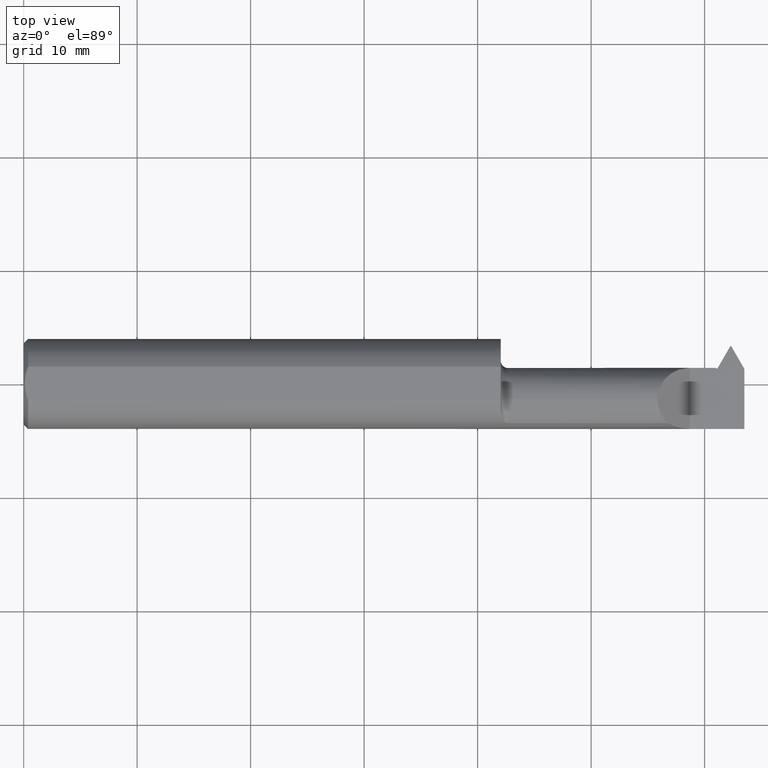
[diagram: clean part render]
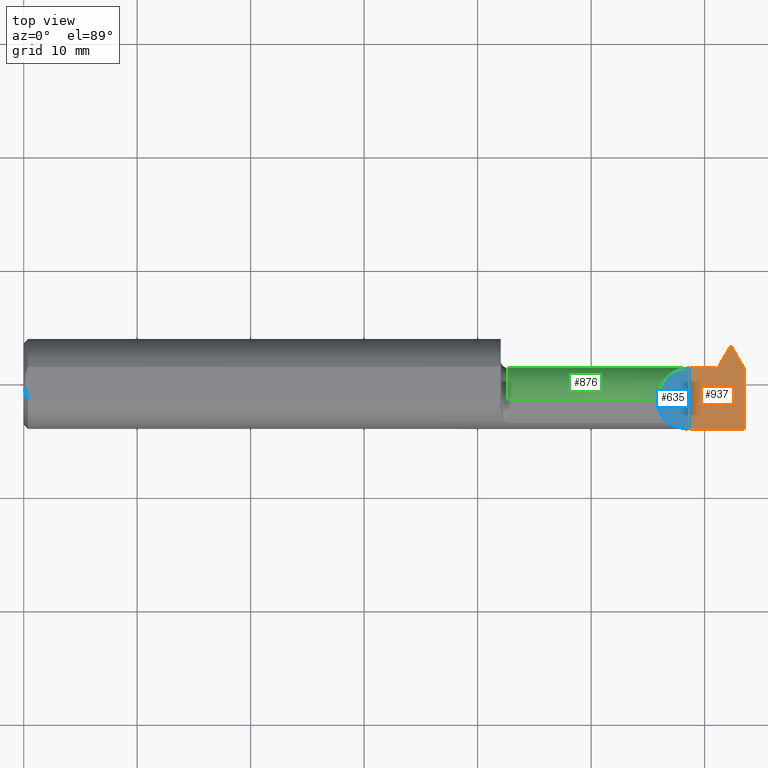
[diagram: same view with three faces highlighted in distinct colors, each labeled with its STEP entity id]
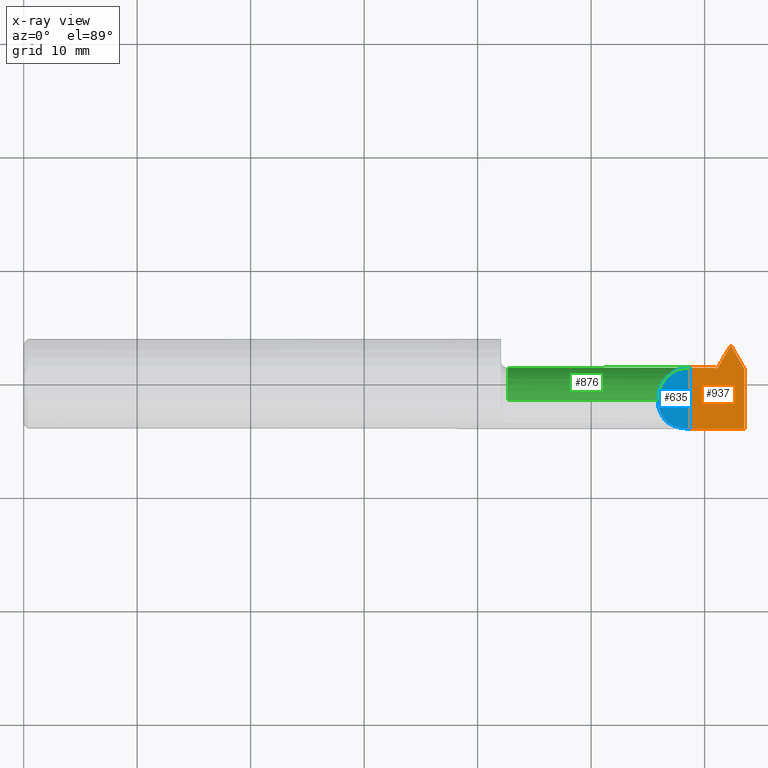
[diagram: x-ray of the same camera — body ghosted, the three highlighted faces saturated]
A machine part, top view with three faces highlighted in distinct colors.
The next image is the same camera in x-ray (body ghosted, the three faces saturated) — at least one of them is partly hidden behind the body in this view.
Their STEP definitions:

[orange] entity #937 — the highlighted planar face has unit normal (-0, 0, -1).
#1 = CARTESIAN_POINT ( 'NONE',  ( 2.310000000000000053, -0.1560999999999999888, -3.979970649922725226E-17 ) ) ;
#3 = VECTOR ( 'NONE', #726, 39.37007874015748143 ) ;
#54 = ORIENTED_EDGE ( 'NONE', *, *, #958, .F. ) ;
#68 = EDGE_CURVE ( 'NONE', #113, #148, #905, .T. ) ;
#76 = CARTESIAN_POINT ( 'NONE',  ( 2.406716679003209070, 0.05389999999999999653, 0.000000000000000000 ) ) ;
#80 = VECTOR ( 'NONE', #745, 39.37007874015748854 ) ;
#86 = LINE ( 'NONE', #670, #80 ) ;
#92 = DIRECTION ( 'NONE',  ( 1.000000000000000000, -0.000000000000000000, -0.000000000000000000 ) ) ;
#111 = CARTESIAN_POINT ( 'NONE',  ( 2.310000000000000053, 0.05590000000000001218, -3.979970649922725226E-17 ) ) ;
#113 = VERTEX_POINT ( 'NONE', #370 ) ;
#147 = CARTESIAN_POINT ( 'NONE',  ( 2.500000000000000000, 0.05265867555372412412, 0.000000000000000000 ) ) ;
#148 = VERTEX_POINT ( 'NONE', #147 ) ;
#151 = VECTOR ( 'NONE', #411, 39.37007874015748143 ) ;
#159 = DIRECTION ( 'NONE',  ( -0.000000000000000000, 0.000000000000000000, -1.000000000000000000 ) ) ;
#180 = CARTESIAN_POINT ( 'NONE',  ( 2.451750000000000096, 0.1318999999999999617, -3.979970649922725226E-17 ) ) ;
#221 = DIRECTION ( 'NONE',  ( -1.000000000000000000, -7.250278991207125343E-15, 0.000000000000000000 ) ) ;
#286 = LINE ( 'NONE', #882, #794 ) ;
#300 = DIRECTION ( 'NONE',  ( -0.000000000000000000, 1.000000000000000000, -0.000000000000000000 ) ) ;
#307 = FACE_OUTER_BOUND ( 'NONE', #388, .T. ) ;
#310 = VECTOR ( 'NONE', #221, 39.37007874015748143 ) ;
#345 = LINE ( 'NONE', #583, #3 ) ;
#354 = CARTESIAN_POINT ( 'NONE',  ( 1.655000000000000249, 0.05590000000000001218, -3.979970649922725226E-17 ) ) ;
#359 = DIRECTION ( 'NONE',  ( 1.000000000000000000, 0.000000000000000000, 0.000000000000000000 ) ) ;
#368 = CARTESIAN_POINT ( 'NONE',  ( 2.310000000000000053, 0.1749999999999999889, -3.979970649922725226E-17 ) ) ;
#370 = CARTESIAN_POINT ( 'NONE',  ( 2.500000000000000000, -0.1560999999999999333, -3.979970649922725226E-17 ) ) ;
#388 = EDGE_LOOP ( 'NONE', ( #541, #54, #477, #714, #567, #446, #509, #897, #926 ) ) ;
#411 = DIRECTION ( 'NONE',  ( 2.731847993664263613E-15, -1.000000000000000000, -0.000000000000000000 ) ) ;
#425 = LINE ( 'NONE', #815, #310 ) ;
#446 = ORIENTED_EDGE ( 'NONE', *, *, #642, .F. ) ;
#461 = EDGE_CURVE ( 'NONE', #813, #624, #286, .T. ) ;
#476 = CARTESIAN_POINT ( 'NONE',  ( 2.500000000000000000, 0.1749999999999999889, -3.979970649922725226E-17 ) ) ;
#477 = ORIENTED_EDGE ( 'NONE', *, *, #888, .T. ) ;
#498 = DIRECTION ( 'NONE',  ( 0.5000000000000026645, 0.8660254037844370423, 0.000000000000000000 ) ) ;
#500 = LINE ( 'NONE', #354, #781 ) ;
#507 = CARTESIAN_POINT ( 'NONE',  ( 2.400999999999999801, 0.05389999999999999653, 0.000000000000000000 ) ) ;
#509 = ORIENTED_EDGE ( 'NONE', *, *, #864, .F. ) ;
#514 = VERTEX_POINT ( 'NONE', #1 ) ;
#537 = EDGE_CURVE ( 'NONE', #880, #813, #833, .T. ) ;
#541 = ORIENTED_EDGE ( 'NONE', *, *, #68, .T. ) ;
#554 = LINE ( 'NONE', #850, #151 ) ;
#560 = VERTEX_POINT ( 'NONE', #812 ) ;
#567 = ORIENTED_EDGE ( 'NONE', *, *, #537, .F. ) ;
#575 = VERTEX_POINT ( 'NONE', #821 ) ;
#583 = CARTESIAN_POINT ( 'NONE',  ( 2.500000000000000000, -0.1560999999999999888, -3.979970649922725226E-17 ) ) ;
#616 = VERTEX_POINT ( 'NONE', #111 ) ;
#624 = VERTEX_POINT ( 'NONE', #180 ) ;
#642 = EDGE_CURVE ( 'NONE', #560, #880, #554, .T. ) ;
#655 = DIRECTION ( 'NONE',  ( -0.000000000000000000, 1.000000000000000000, -0.000000000000000000 ) ) ;
#665 = DIRECTION ( 'NONE',  ( -1.000000000000000000, 0.000000000000000000, 0.000000000000000000 ) ) ;
#670 = CARTESIAN_POINT ( 'NONE',  ( 2.452999999999999847, 0.1340650635094609855, 0.000000000000000000 ) ) ;
#673 = VECTOR ( 'NONE', #300, 39.37007874015748143 ) ;
#679 = PLANE ( 'NONE',  #827 ) ;
#714 = ORIENTED_EDGE ( 'NONE', *, *, #461, .F. ) ;
#726 = DIRECTION ( 'NONE',  ( -1.000000000000000000, -0.000000000000000000, -0.000000000000000000 ) ) ;
#736 = CARTESIAN_POINT ( 'NONE',  ( 2.310000000000000053, 0.1749999999999999889, -3.979970649922725226E-17 ) ) ;
#745 = DIRECTION ( 'NONE',  ( 0.5000000000000022204, -0.8660254037844373753, 0.000000000000000000 ) ) ;
#752 = EDGE_CURVE ( 'NONE', #514, #616, #877, .T. ) ;
#781 = VECTOR ( 'NONE', #359, 39.37007874015748143 ) ;
#790 = EDGE_CURVE ( 'NONE', #113, #514, #345, .T. ) ;
#794 = VECTOR ( 'NONE', #498, 39.37007874015748854 ) ;
#806 = CARTESIAN_POINT ( 'NONE',  ( 2.406716679003209070, 0.05389999999999999653, 0.000000000000000000 ) ) ;
#811 = VECTOR ( 'NONE', #92, 39.37007874015748143 ) ;
#812 = CARTESIAN_POINT ( 'NONE',  ( 2.400999999999999801, 0.05590000000000001218, 0.000000000000000000 ) ) ;
#813 = VERTEX_POINT ( 'NONE', #806 ) ;
#815 = CARTESIAN_POINT ( 'NONE',  ( 2.310000000000000497, 0.1318999999999989348, -3.979970649922725226E-17 ) ) ;
#821 = CARTESIAN_POINT ( 'NONE',  ( 2.454250000000000043, 0.1318999999999999895, 0.000000000000000000 ) ) ;
#827 = AXIS2_PLACEMENT_3D ( 'NONE', #368, #159, #665 ) ;
#833 = LINE ( 'NONE', #76, #811 ) ;
#842 = VECTOR ( 'NONE', #655, 39.37007874015748143 ) ;
#850 = CARTESIAN_POINT ( 'NONE',  ( 2.400999999999999801, 0.05389999999999999653, 0.000000000000000000 ) ) ;
#864 = EDGE_CURVE ( 'NONE', #616, #560, #500, .T. ) ;
#877 = LINE ( 'NONE', #736, #842 ) ;
#880 = VERTEX_POINT ( 'NONE', #507 ) ;
#882 = CARTESIAN_POINT ( 'NONE',  ( 2.406716679003209070, 0.05389999999999999653, 0.000000000000000000 ) ) ;
#888 = EDGE_CURVE ( 'NONE', #575, #624, #425, .T. ) ;
#897 = ORIENTED_EDGE ( 'NONE', *, *, #752, .F. ) ;
#905 = LINE ( 'NONE', #476, #673 ) ;
#926 = ORIENTED_EDGE ( 'NONE', *, *, #790, .F. ) ;
#937 = ADVANCED_FACE ( 'NONE', ( #307 ), #679, .F. ) ;
#958 = EDGE_CURVE ( 'NONE', #575, #148, #86, .T. ) ;

[blue] entity #635 — the highlighted planar face has unit normal (-0.7071, 0, -0.7071).
#13 = CARTESIAN_POINT ( 'NONE',  ( 2.199100000000000499, -0.05509999999999999620, 0.1110000000000000014 ) ) ;
#41 = CARTESIAN_POINT ( 'NONE',  ( 2.199100000000000943, 0.009875857480521079562, 0.1110000000000000014 ) ) ;
#95 = AXIS2_PLACEMENT_3D ( 'NONE', #628, #558, #253 ) ;
#136 = CARTESIAN_POINT ( 'NONE',  ( 2.310000000000000053, -0.1560999679692471886, 9.999999999973052634E-05 ) ) ;
#166 = EDGE_CURVE ( 'NONE', #296, #950, #449, .T. ) ;
#177 = EDGE_CURVE ( 'NONE', #394, #296, #222, .T. ) ;
#196 = CARTESIAN_POINT ( 'NONE',  ( 2.258128869355540136, -0.1495342103855425986, 0.05197113064445998271 ) ) ;
#222 =( BOUNDED_CURVE ( )  B_SPLINE_CURVE ( 3, ( #311, #615, #41, #485 ),
 .UNSPECIFIED., .F., .F. ) 
 B_SPLINE_CURVE_WITH_KNOTS ( ( 4, 4 ),
 ( 4.713289881407453308, 6.283185307179586232 ),
 .UNSPECIFIED. ) 
 CURVE ( )  GEOMETRIC_REPRESENTATION_ITEM ( )  RATIONAL_B_SPLINE_CURVE ( ( 1.000000000000000000, 0.8049501506993195221, 0.8049501506993195221, 1.000000000000000000 ) ) 
 REPRESENTATION_ITEM ( '' )  );
#249 = CARTESIAN_POINT ( 'NONE',  ( 2.199100000000000499, -0.05509999999999999620, 0.1110000000000000014 ) ) ;
#253 = DIRECTION ( 'NONE',  ( -0.7071067811865461294, 0.000000000000000000, 0.7071067811865487940 ) ) ;
#282 = CARTESIAN_POINT ( 'NONE',  ( 2.310000000000000053, -0.1560999679692471886, 9.999999999973052634E-05 ) ) ;
#296 = VERTEX_POINT ( 'NONE', #249 ) ;
#305 = CARTESIAN_POINT ( 'NONE',  ( 2.199100000000000499, -0.08664595039291324297, 0.1110000000000000431 ) ) ;
#311 = CARTESIAN_POINT ( 'NONE',  ( 2.310000000000000053, 0.05589995495494588795, 9.999999999973052634E-05 ) ) ;
#318 = ORIENTED_EDGE ( 'NONE', *, *, #177, .T. ) ;
#321 =( BOUNDED_CURVE ( )  B_SPLINE_CURVE ( 3, ( #282, #737, #196, #869 ),
 .UNSPECIFIED., .F., .T. ) 
 B_SPLINE_CURVE_WITH_KNOTS ( ( 4, 4 ),
 ( 4.713029595418895212, 5.214101826882463264 ),
 .UNSPECIFIED. ) 
 CURVE ( )  GEOMETRIC_REPRESENTATION_ITEM ( )  RATIONAL_B_SPLINE_CURVE ( ( 1.000000000000000000, 0.9791864302132653464, 0.9791864302132653464, 1.000000000000000000 ) ) 
 REPRESENTATION_ITEM ( '' )  );
#342 = ORIENTED_EDGE ( 'NONE', *, *, #166, .T. ) ;
#364 = CARTESIAN_POINT ( 'NONE',  ( 2.310000000000000053, 0.1749999999999999889, 9.999999999973052634E-05 ) ) ;
#380 = EDGE_CURVE ( 'NONE', #835, #950, #321, .T. ) ;
#384 = LINE ( 'NONE', #364, #901 ) ;
#394 = VERTEX_POINT ( 'NONE', #501 ) ;
#428 = ORIENTED_EDGE ( 'NONE', *, *, #380, .F. ) ;
#449 =( BOUNDED_CURVE ( )  B_SPLINE_CURVE ( 3, ( #13, #305, #607, #899 ),
 .UNSPECIFIED., .F., .T. ) 
 B_SPLINE_CURVE_WITH_KNOTS ( ( 4, 4 ),
 ( 0.000000000000000000, 0.8280247010054025969 ),
 .UNSPECIFIED. ) 
 CURVE ( )  GEOMETRIC_REPRESENTATION_ITEM ( )  RATIONAL_B_SPLINE_CURVE ( ( 1.000000000000000000, 0.9436760562907885452, 0.9436760562907885452, 1.000000000000000000 ) ) 
 REPRESENTATION_ITEM ( '' )  );
#485 = CARTESIAN_POINT ( 'NONE',  ( 2.199100000000000499, -0.05509999999999999620, 0.1110000000000000014 ) ) ;
#501 = CARTESIAN_POINT ( 'NONE',  ( 2.310000000000000053, 0.05589995495494588795, 9.999999999973052634E-05 ) ) ;
#505 = ORIENTED_EDGE ( 'NONE', *, *, #889, .F. ) ;
#558 = DIRECTION ( 'NONE',  ( -0.7071067811865489050, 0.000000000000000000, -0.7071067811865462405 ) ) ;
#607 = CARTESIAN_POINT ( 'NONE',  ( 2.211790491667020575, -0.1155267122845504424, 0.09830950833298025826 ) ) ;
#615 = CARTESIAN_POINT ( 'NONE',  ( 2.245024168887416405, 0.05584141814640498219, 0.06507583111258367914 ) ) ;
#628 = CARTESIAN_POINT ( 'NONE',  ( 2.165000000000000480, 0.1749999999999999889, 0.1450999999999999512 ) ) ;
#635 = ADVANCED_FACE ( 'NONE', ( #639 ), #698, .F. ) ;
#639 = FACE_OUTER_BOUND ( 'NONE', #711, .T. ) ;
#698 = PLANE ( 'NONE',  #95 ) ;
#711 = EDGE_LOOP ( 'NONE', ( #505, #318, #342, #428 ) ) ;
#737 = CARTESIAN_POINT ( 'NONE',  ( 2.283651030168674989, -0.1560830884207283498, 0.02644896983132509483 ) ) ;
#741 = DIRECTION ( 'NONE',  ( 0.000000000000000000, -1.000000000000000000, 0.000000000000000000 ) ) ;
#832 = CARTESIAN_POINT ( 'NONE',  ( 2.235027139386173367, -0.1368622504537203854, 0.07507286061382700826 ) ) ;
#835 = VERTEX_POINT ( 'NONE', #136 ) ;
#869 = CARTESIAN_POINT ( 'NONE',  ( 2.235027139386173367, -0.1368622504537203854, 0.07507286061382700826 ) ) ;
#889 = EDGE_CURVE ( 'NONE', #394, #835, #384, .T. ) ;
#899 = CARTESIAN_POINT ( 'NONE',  ( 2.235027139386173367, -0.1368622504537203854, 0.07507286061382700826 ) ) ;
#901 = VECTOR ( 'NONE', #741, 39.37007874015748143 ) ;
#950 = VERTEX_POINT ( 'NONE', #832 ) ;

[green] entity #876 — the highlighted cylindrical surface (edge-blend (fillet) strip) has radius 2.8194 mm, axis along (-1, -0, -0).
#6 = EDGE_CURVE ( 'NONE', #296, #499, #430, .T. ) ;
#18 = VECTOR ( 'NONE', #102, 39.37007874015748143 ) ;
#24 = VERTEX_POINT ( 'NONE', #872 ) ;
#26 = DIRECTION ( 'NONE',  ( 1.000000000000000000, -0.000000000000000000, -0.000000000000000000 ) ) ;
#41 = CARTESIAN_POINT ( 'NONE',  ( 2.199100000000000943, 0.009875857480521079562, 0.1110000000000000014 ) ) ;
#52 = DIRECTION ( 'NONE',  ( 0.000000000000000000, -4.460787827492321673E-15, 1.000000000000000000 ) ) ;
#57 = EDGE_CURVE ( 'NONE', #620, #560, #887, .T. ) ;
#65 = CARTESIAN_POINT ( 'NONE',  ( 2.411644403619502608, 0.04536493059887507229, -0.04719955211401832829 ) ) ;
#74 = ORIENTED_EDGE ( 'NONE', *, *, #177, .F. ) ;
#78 = CARTESIAN_POINT ( 'NONE',  ( 2.398037538417669534, 0.05590000000000001218, -0.01638262716674719274 ) ) ;
#79 = CIRCLE ( 'NONE', #629, 0.1110000000000000014 ) ;
#102 = DIRECTION ( 'NONE',  ( -1.000000000000000000, -0.000000000000000000, -0.000000000000000000 ) ) ;
#103 = EDGE_LOOP ( 'NONE', ( #936, #328, #580, #840, #74, #641, #482, #659, #265 ) ) ;
#111 = CARTESIAN_POINT ( 'NONE',  ( 2.310000000000000053, 0.05590000000000001218, -3.979970649922725226E-17 ) ) ;
#119 = CARTESIAN_POINT ( 'NONE',  ( 2.412458785480013024, 0.03700406005429889011, -0.06195031978540653517 ) ) ;
#122 = DIRECTION ( 'NONE',  ( 0.000000000000000000, 0.000000000000000000, 1.000000000000000000 ) ) ;
#125 = EDGE_CURVE ( 'NONE', #24, #620, #601, .T. ) ;
#168 = AXIS2_PLACEMENT_3D ( 'NONE', #767, #26, #52 ) ;
#177 = EDGE_CURVE ( 'NONE', #394, #296, #222, .T. ) ;
#194 = DIRECTION ( 'NONE',  ( 0.000000000000000000, 0.000000000000000000, -1.000000000000000000 ) ) ;
#200 = VERTEX_POINT ( 'NONE', #851 ) ;
#207 = CARTESIAN_POINT ( 'NONE',  ( 1.680000000000000160, -0.05509999999999999620, 0.000000000000000000 ) ) ;
#212 = CARTESIAN_POINT ( 'NONE',  ( 2.416039260333789240, 0.02654051824741836610, -0.08726758657088898308 ) ) ;
#216 = EDGE_CURVE ( 'NONE', #394, #616, #701, .T. ) ;
#222 =( BOUNDED_CURVE ( )  B_SPLINE_CURVE ( 3, ( #311, #615, #41, #485 ),
 .UNSPECIFIED., .F., .F. ) 
 B_SPLINE_CURVE_WITH_KNOTS ( ( 4, 4 ),
 ( 4.713289881407453308, 6.283185307179586232 ),
 .UNSPECIFIED. ) 
 CURVE ( )  GEOMETRIC_REPRESENTATION_ITEM ( )  RATIONAL_B_SPLINE_CURVE ( ( 1.000000000000000000, 0.8049501506993195221, 0.8049501506993195221, 1.000000000000000000 ) ) 
 REPRESENTATION_ITEM ( '' )  );
#224 = DIRECTION ( 'NONE',  ( -1.000000000000000000, -0.000000000000000000, -0.000000000000000000 ) ) ;
#225 = ORIENTED_EDGE ( 'NONE', *, *, #721, .F. ) ;
#249 = CARTESIAN_POINT ( 'NONE',  ( 2.199100000000000499, -0.05509999999999999620, 0.1110000000000000014 ) ) ;
#255 =( BOUNDED_CURVE ( )  B_SPLINE_CURVE ( 3, ( #119, #441, #727, #653 ),
 .UNSPECIFIED., .F., .F. ) 
 B_SPLINE_CURVE_WITH_KNOTS ( ( 4, 4 ),
 ( 2.948301984786013463, 3.334883322393572769 ),
 .UNSPECIFIED. ) 
 CURVE ( )  GEOMETRIC_REPRESENTATION_ITEM ( )  RATIONAL_B_SPLINE_CURVE ( ( 1.000000000000000000, 0.9875849649017640619, 0.9875849649017640619, 1.000000000000000000 ) ) 
 REPRESENTATION_ITEM ( '' )  );
#265 = ORIENTED_EDGE ( 'NONE', *, *, #125, .F. ) ;
#274 = DIRECTION ( 'NONE',  ( -1.000000000000000000, -0.000000000000000000, -0.000000000000000000 ) ) ;
#278 = AXIS2_PLACEMENT_3D ( 'NONE', #571, #333, #777 ) ;
#284 = ORIENTED_EDGE ( 'NONE', *, *, #361, .F. ) ;
#285 = CYLINDRICAL_SURFACE ( 'NONE', #490, 0.1110000000000000014 ) ;
#290 = VERTEX_POINT ( 'NONE', #914 ) ;
#296 = VERTEX_POINT ( 'NONE', #249 ) ;
#304 = EDGE_CURVE ( 'NONE', #553, #200, #699, .T. ) ;
#311 = CARTESIAN_POINT ( 'NONE',  ( 2.310000000000000053, 0.05589995495494588795, 9.999999999973052634E-05 ) ) ;
#328 = ORIENTED_EDGE ( 'NONE', *, *, #304, .T. ) ;
#333 = DIRECTION ( 'NONE',  ( -1.000000000000000000, -0.000000000000000000, -0.000000000000000000 ) ) ;
#350 = CARTESIAN_POINT ( 'NONE',  ( 2.419930999995321574, -0.05510000000000081499, -0.1109999999999999876 ) ) ;
#354 = CARTESIAN_POINT ( 'NONE',  ( 1.655000000000000249, 0.05590000000000001218, -3.979970649922725226E-17 ) ) ;
#356 = CARTESIAN_POINT ( 'NONE',  ( 1.655000000000000249, -0.05509999999999999620, 0.1110000000000000014 ) ) ;
#359 = DIRECTION ( 'NONE',  ( 1.000000000000000000, 0.000000000000000000, 0.000000000000000000 ) ) ;
#361 = EDGE_CURVE ( 'NONE', #686, #290, #255, .T. ) ;
#387 = CARTESIAN_POINT ( 'NONE',  ( 2.400999999999999801, 0.05590000000000001218, 0.000000000000000000 ) ) ;
#390 = CARTESIAN_POINT ( 'NONE',  ( 2.419930999995321574, -0.05510000000000081499, -0.1109999999999999876 ) ) ;
#394 = VERTEX_POINT ( 'NONE', #501 ) ;
#396 = CARTESIAN_POINT ( 'NONE',  ( 1.655000000000000249, -0.05509999999999998233, -0.1110000000000000014 ) ) ;
#404 = CARTESIAN_POINT ( 'NONE',  ( 2.392464930598871664, 0.04536493059887180407, -0.04719955211401773154 ) ) ;
#430 = LINE ( 'NONE', #356, #748 ) ;
#441 = CARTESIAN_POINT ( 'NONE',  ( 2.414716234995702759, 0.02897099956963827480, -0.07389339752676266082 ) ) ;
#458 =( BOUNDED_CURVE ( )  B_SPLINE_CURVE ( 3, ( #350, #643, #212, #65 ),
 .UNSPECIFIED., .F., .F. ) 
 B_SPLINE_CURVE_WITH_KNOTS ( ( 4, 4 ),
 ( 3.320488901919218083, 4.452078972209921659 ),
 .UNSPECIFIED. ) 
 CURVE ( )  GEOMETRIC_REPRESENTATION_ITEM ( )  RATIONAL_B_SPLINE_CURVE ( ( 1.000000000000000000, 0.8961084394353004967, 0.8961084394353004967, 1.000000000000000000 ) ) 
 REPRESENTATION_ITEM ( '' )  );
#482 = ORIENTED_EDGE ( 'NONE', *, *, #864, .T. ) ;
#484 = CARTESIAN_POINT ( 'NONE',  ( 2.412458785480013024, 0.03700406005429889011, -0.06195031978540653517 ) ) ;
#485 = CARTESIAN_POINT ( 'NONE',  ( 2.199100000000000499, -0.05509999999999999620, 0.1110000000000000014 ) ) ;
#490 = AXIS2_PLACEMENT_3D ( 'NONE', #788, #274, #122 ) ;
#496 = FACE_OUTER_BOUND ( 'NONE', #103, .T. ) ;
#499 = VERTEX_POINT ( 'NONE', #525 ) ;
#500 = LINE ( 'NONE', #354, #781 ) ;
#501 = CARTESIAN_POINT ( 'NONE',  ( 2.310000000000000053, 0.05589995495494588795, 9.999999999973052634E-05 ) ) ;
#525 = CARTESIAN_POINT ( 'NONE',  ( 1.680000000000000160, -0.05509999999999999620, 0.1110000000000000014 ) ) ;
#540 = CARTESIAN_POINT ( 'NONE',  ( 2.395146223367075944, 0.05233117082158721123, -0.03237180885875237668 ) ) ;
#548 = VECTOR ( 'NONE', #224, 39.37007874015748143 ) ;
#553 = VERTEX_POINT ( 'NONE', #390 ) ;
#560 = VERTEX_POINT ( 'NONE', #812 ) ;
#571 = CARTESIAN_POINT ( 'NONE',  ( 2.310000000000000053, -0.05509999999999999620, 0.000000000000000000 ) ) ;
#572 = EDGE_LOOP ( 'NONE', ( #225, #284 ) ) ;
#580 = ORIENTED_EDGE ( 'NONE', *, *, #849, .T. ) ;
#601 = LINE ( 'NONE', #619, #548 ) ;
#615 = CARTESIAN_POINT ( 'NONE',  ( 2.245024168887416405, 0.05584141814640498219, 0.06507583111258367914 ) ) ;
#616 = VERTEX_POINT ( 'NONE', #111 ) ;
#619 = CARTESIAN_POINT ( 'NONE',  ( 1.655000000000000249, 0.04536493059887179019, -0.04719955211401773848 ) ) ;
#620 = VERTEX_POINT ( 'NONE', #404 ) ;
#629 = AXIS2_PLACEMENT_3D ( 'NONE', #207, #730, #194 ) ;
#641 = ORIENTED_EDGE ( 'NONE', *, *, #216, .T. ) ;
#643 = CARTESIAN_POINT ( 'NONE',  ( 2.419121698429875345, -0.01083030511044178260, -0.1110000000000003900 ) ) ;
#653 = CARTESIAN_POINT ( 'NONE',  ( 2.412458785480013024, 0.006850319785406578862, -0.09210406005429884468 ) ) ;
#659 = ORIENTED_EDGE ( 'NONE', *, *, #57, .F. ) ;
#660 = FACE_BOUND ( 'NONE', #572, .T. ) ;
#686 = VERTEX_POINT ( 'NONE', #484 ) ;
#691 = CARTESIAN_POINT ( 'NONE',  ( 2.392464930598871664, 0.04536493059887180407, -0.04719955211401773154 ) ) ;
#699 = LINE ( 'NONE', #396, #18 ) ;
#701 = CIRCLE ( 'NONE', #278, 0.1110000000000000014 ) ;
#721 = EDGE_CURVE ( 'NONE', #290, #686, #751, .T. ) ;
#727 = CARTESIAN_POINT ( 'NONE',  ( 2.414716234995702759, 0.01879339752676269237, -0.08407099956963827447 ) ) ;
#730 = DIRECTION ( 'NONE',  ( 1.000000000000000000, 0.000000000000000000, 0.000000000000000000 ) ) ;
#733 = DIRECTION ( 'NONE',  ( -1.000000000000000000, -0.000000000000000000, -0.000000000000000000 ) ) ;
#748 = VECTOR ( 'NONE', #733, 39.37007874015748143 ) ;
#751 = CIRCLE ( 'NONE', #168, 0.1110000000000000014 ) ;
#767 = CARTESIAN_POINT ( 'NONE',  ( 2.412458785480013024, -0.05509999999999999620, 0.000000000000000000 ) ) ;
#777 = DIRECTION ( 'NONE',  ( 0.000000000000000000, 0.000000000000000000, 1.000000000000000000 ) ) ;
#779 = EDGE_CURVE ( 'NONE', #553, #24, #458, .T. ) ;
#781 = VECTOR ( 'NONE', #359, 39.37007874015748143 ) ;
#788 = CARTESIAN_POINT ( 'NONE',  ( 1.655000000000000249, -0.05509999999999999620, 0.000000000000000000 ) ) ;
#812 = CARTESIAN_POINT ( 'NONE',  ( 2.400999999999999801, 0.05590000000000001218, 0.000000000000000000 ) ) ;
#840 = ORIENTED_EDGE ( 'NONE', *, *, #6, .F. ) ;
#849 = EDGE_CURVE ( 'NONE', #200, #499, #79, .T. ) ;
#851 = CARTESIAN_POINT ( 'NONE',  ( 1.680000000000000160, -0.05509999999999998233, -0.1110000000000000014 ) ) ;
#864 = EDGE_CURVE ( 'NONE', #616, #560, #500, .T. ) ;
#872 = CARTESIAN_POINT ( 'NONE',  ( 2.411644403619502608, 0.04536493059887507229, -0.04719955211401832829 ) ) ;
#876 = ADVANCED_FACE ( 'NONE', ( #660, #496 ), #285, .T. ) ;
#887 =( BOUNDED_CURVE ( )  B_SPLINE_CURVE ( 3, ( #691, #540, #78, #387 ),
 .UNSPECIFIED., .F., .T. ) 
 B_SPLINE_CURVE_WITH_KNOTS ( ( 4, 4 ),
 ( 1.131590070290673378, 1.570796326794881681 ),
 .UNSPECIFIED. ) 
 CURVE ( )  GEOMETRIC_REPRESENTATION_ITEM ( )  RATIONAL_B_SPLINE_CURVE ( ( 1.000000000000000000, 0.9839893210965720005, 0.9839893210965720005, 1.000000000000000000 ) ) 
 REPRESENTATION_ITEM ( '' )  );
#914 = CARTESIAN_POINT ( 'NONE',  ( 2.412458785480013024, 0.006850319785406578862, -0.09210406005429884468 ) ) ;
#936 = ORIENTED_EDGE ( 'NONE', *, *, #779, .F. ) ;